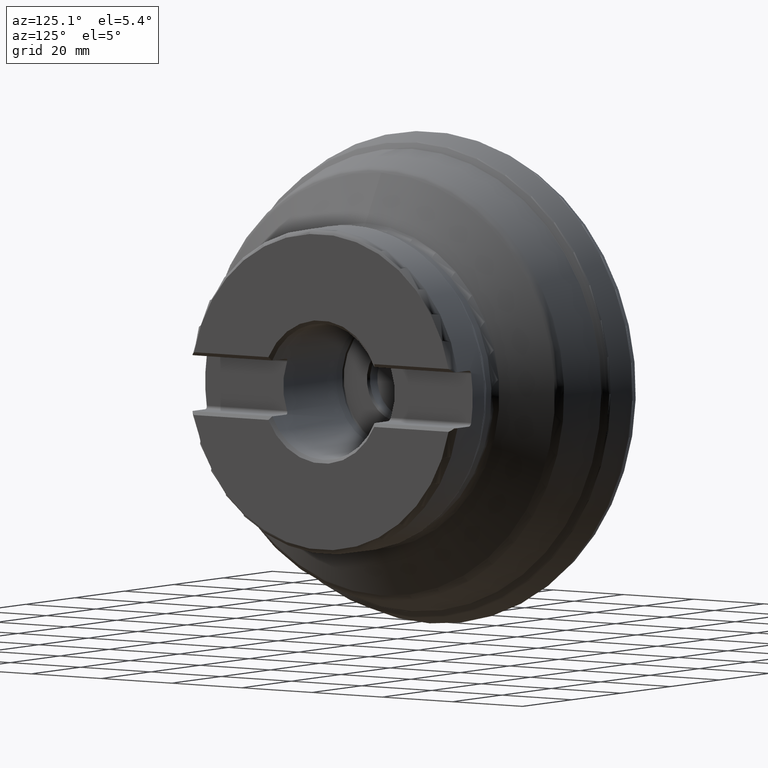
[diagram: clean part render]
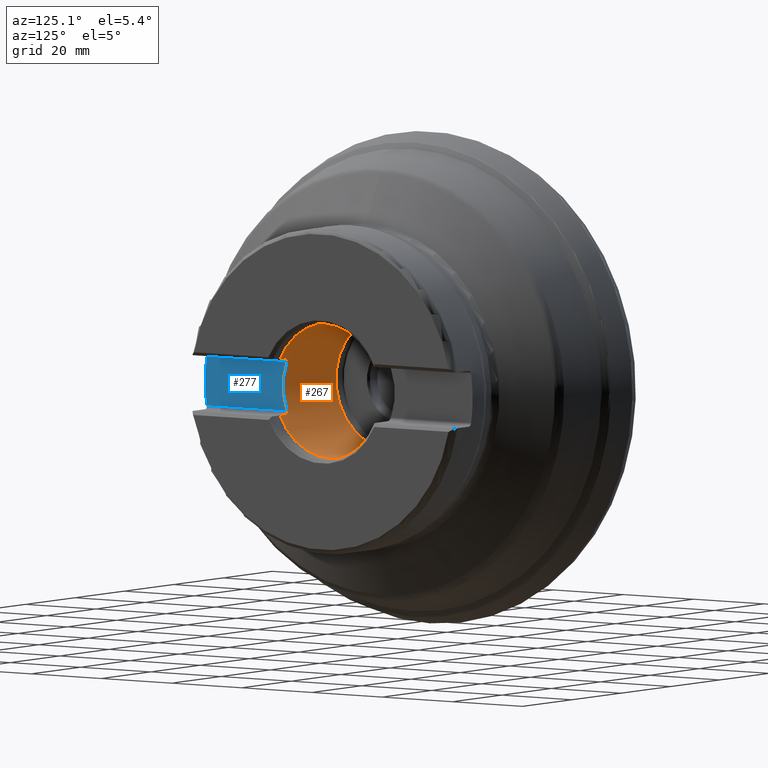
[diagram: same view with the hole feature highlighted: cylindrical wall and planar end face, labeled with their STEP entity ids]
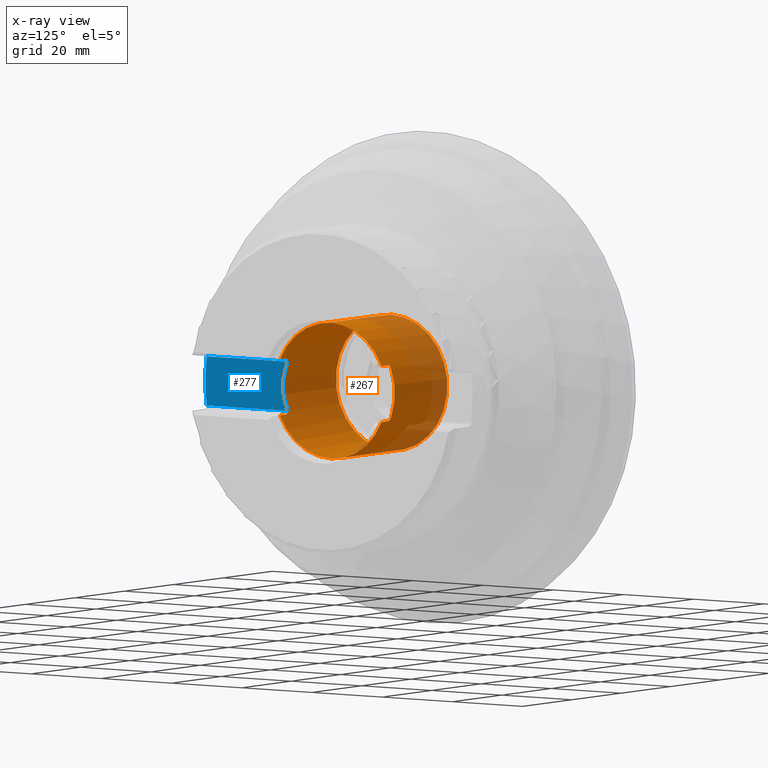
[diagram: x-ray of the same camera — body ghosted, the hole faces saturated]
A machine part, auxiliary view. The highlighted faces form one hole feature of diameter 31.75 mm: the cylindrical wall (entity #267, orange) and its adjacent planar end face (entity #277, blue) — they share a circular edge in the B-rep.
The next image is the same camera in x-ray (body ghosted, the hole faces saturated) — the bore reads through the body.
Wall:
#105=CYLINDRICAL_SURFACE('',#1148,15.875);
#185=LINE('',#1796,#209);
#186=LINE('',#1834,#210);
#187=LINE('',#1835,#211);
#188=LINE('',#1873,#212);
#209=VECTOR('',#1354,1.);
#210=VECTOR('',#1357,1.);
#211=VECTOR('',#1358,1.);
#212=VECTOR('',#1361,1.);
#267=ADVANCED_FACE('',(#451,#452),#105,.F.);
#371=B_SPLINE_CURVE_WITH_KNOTS('',3,(#1798,#1799,#1800,#1801,#1802,#1803,
#1804,#1805,#1806,#1807,#1808,#1809,#1810,#1811,#1812,#1813),
 .UNSPECIFIED.,.F.,.F.,(4,3,3,3,3,4),(0.,0.196363871575081,0.413659802878611,
0.614000905600015,0.806746950187233,1.),.UNSPECIFIED.);
#372=B_SPLINE_CURVE_WITH_KNOTS('',3,(#1817,#1818,#1819,#1820,#1821,#1822,
#1823,#1824,#1825,#1826,#1827,#1828,#1829,#1830,#1831,#1832),
 .UNSPECIFIED.,.F.,.F.,(4,3,3,3,3,4),(0.,0.0834205287927223,0.295513851157138,
0.52608084054011,0.763210875925665,1.),.UNSPECIFIED.);
#373=B_SPLINE_CURVE_WITH_KNOTS('',3,(#1837,#1838,#1839,#1840,#1841,#1842,
#1843,#1844,#1845,#1846,#1847,#1848,#1849,#1850,#1851,#1852),
 .UNSPECIFIED.,.F.,.F.,(4,3,3,3,3,4),(0.,0.196491915280469,0.413786129382111,
0.614092739710108,0.806792433571838,1.),.UNSPECIFIED.);
#374=B_SPLINE_CURVE_WITH_KNOTS('',3,(#1856,#1857,#1858,#1859,#1860,#1861,
#1862,#1863,#1864,#1865,#1866,#1867,#1868,#1869,#1870,#1871),
 .UNSPECIFIED.,.F.,.F.,(4,3,3,3,3,4),(0.,0.0835474075782083,0.295655758576182,
0.526190034038671,0.76326488615965,1.),.UNSPECIFIED.);
#451=FACE_BOUND('',#551,.T.);
#452=FACE_BOUND('',#552,.T.);
#551=EDGE_LOOP('',(#695));
#552=EDGE_LOOP('',(#696,#697,#698,#699,#700,#701,#702,#703,#704,#705,#706,
#707));
#695=ORIENTED_EDGE('',*,*,#968,.T.);
#696=ORIENTED_EDGE('',*,*,#971,.T.);
#697=ORIENTED_EDGE('',*,*,#975,.T.);
#698=ORIENTED_EDGE('',*,*,#976,.F.);
#699=ORIENTED_EDGE('',*,*,#977,.T.);
#700=ORIENTED_EDGE('',*,*,#978,.F.);
#701=ORIENTED_EDGE('',*,*,#979,.T.);
#702=ORIENTED_EDGE('',*,*,#974,.T.);
#703=ORIENTED_EDGE('',*,*,#980,.T.);
#704=ORIENTED_EDGE('',*,*,#981,.F.);
#705=ORIENTED_EDGE('',*,*,#982,.T.);
#706=ORIENTED_EDGE('',*,*,#983,.F.);
#707=ORIENTED_EDGE('',*,*,#984,.T.);
#874=VERTEX_POINT('',#1754);
#875=VERTEX_POINT('',#1767);
#876=VERTEX_POINT('',#1775);
#877=VERTEX_POINT('',#1785);
#878=VERTEX_POINT('',#1793);
#879=VERTEX_POINT('',#1797);
#880=VERTEX_POINT('',#1814);
#881=VERTEX_POINT('',#1816);
#882=VERTEX_POINT('',#1833);
#883=VERTEX_POINT('',#1836);
#884=VERTEX_POINT('',#1853);
#885=VERTEX_POINT('',#1855);
#886=VERTEX_POINT('',#1872);
#968=EDGE_CURVE('',#874,#874,#1060,.T.);
#971=EDGE_CURVE('',#875,#876,#1061,.T.);
#974=EDGE_CURVE('',#877,#878,#1062,.T.);
#975=EDGE_CURVE('',#876,#879,#185,.T.);
#976=EDGE_CURVE('',#880,#879,#371,.T.);
#977=EDGE_CURVE('',#880,#881,#1063,.T.);
#978=EDGE_CURVE('',#882,#881,#372,.T.);
#979=EDGE_CURVE('',#882,#877,#186,.T.);
#980=EDGE_CURVE('',#878,#883,#187,.T.);
#981=EDGE_CURVE('',#884,#883,#373,.T.);
#982=EDGE_CURVE('',#884,#885,#1064,.T.);
#983=EDGE_CURVE('',#886,#885,#374,.T.);
#984=EDGE_CURVE('',#886,#875,#188,.T.);
#1060=CIRCLE('',#1136,15.875);
#1061=CIRCLE('',#1142,15.875);
#1062=CIRCLE('',#1144,15.875);
#1063=CIRCLE('',#1146,15.875);
#1064=CIRCLE('',#1147,15.875);
#1136=AXIS2_PLACEMENT_3D('',#1753,#1334,#1335);
#1142=AXIS2_PLACEMENT_3D('',#1776,#1346,#1347);
#1144=AXIS2_PLACEMENT_3D('',#1794,#1350,#1351);
#1146=AXIS2_PLACEMENT_3D('',#1815,#1355,#1356);
#1147=AXIS2_PLACEMENT_3D('',#1854,#1359,#1360);
#1148=AXIS2_PLACEMENT_3D('',#1874,#1362,#1363);
#1334=DIRECTION('',(-1.,0.,0.));
#1335=DIRECTION('',(0.,0.,1.));
#1346=DIRECTION('',(1.,0.,0.));
#1347=DIRECTION('',(0.,0.,1.));
#1350=DIRECTION('',(1.,0.,0.));
#1351=DIRECTION('',(0.,0.,1.));
#1354=DIRECTION('',(-1.,0.,0.));
#1355=DIRECTION('',(1.,0.,5.2968655755017E-16));
#1356=DIRECTION('',(4.37095678986282E-16,0.,-1.));
#1357=DIRECTION('',(1.,0.,0.));
#1358=DIRECTION('',(-1.,0.,0.));
#1359=DIRECTION('',(1.,0.,5.2968655755017E-16));
#1360=DIRECTION('',(4.37095678986282E-16,0.,-1.));
#1361=DIRECTION('',(1.,0.,0.));
#1362=DIRECTION('',(-1.,0.,0.));
#1363=DIRECTION('',(0.,0.,1.));
#1753=CARTESIAN_POINT('',(22.3,0.,0.));
#1754=CARTESIAN_POINT('',(22.3,0.,15.875));
#1767=CARTESIAN_POINT('',(47.,-14.4621932900926,-6.54680000000002));
#1775=CARTESIAN_POINT('',(47.,14.4621932900926,-6.54680000000002));
#1776=CARTESIAN_POINT('',(47.,0.,0.));
#1785=CARTESIAN_POINT('',(47.,14.4592944074045,6.55319999999998));
#1793=CARTESIAN_POINT('',(47.,-14.4592944074045,6.55319999999998));
#1794=CARTESIAN_POINT('',(47.,0.,0.));
#1796=CARTESIAN_POINT('',(1.59060051155813E-15,14.4621932900926,-6.54680000000003));
#1797=CARTESIAN_POINT('',(44.46,14.4621932900926,-6.54680000000002));
#1798=CARTESIAN_POINT('',(43.66,14.7983078343438,-5.74680000000002));
#1799=CARTESIAN_POINT('',(43.66,14.7673535571785,-5.82650886794066));
#1800=CARTESIAN_POINT('',(43.6721052538313,14.7354359470671,-5.90671745145774));
#1801=CARTESIAN_POINT('',(43.6956226820726,14.7044529100584,-5.98286633779126));
#1802=CARTESIAN_POINT('',(43.7215815345158,14.6702534186133,-6.06692049897588));
#1803=CARTESIAN_POINT('',(43.7621173473612,14.6364047491195,-6.14795918838647));
#1804=CARTESIAN_POINT('',(43.8149132481033,14.6057505819211,-6.21994171505733));
#1805=CARTESIAN_POINT('',(43.8636333423255,14.5774628949377,-6.28636724113905));
#1806=CARTESIAN_POINT('',(43.9239598381318,14.5512551108376,-6.34661339089095));
#1807=CARTESIAN_POINT('',(43.9924022023248,14.5295518322069,-6.39591655317771));
#1808=CARTESIAN_POINT('',(44.0582238487612,14.5086795910243,-6.44333185442424));
#1809=CARTESIAN_POINT('',(44.133196397027,14.4915129403001,-6.48170288215921));
#1810=CARTESIAN_POINT('',(44.2120747775149,14.4799583194974,-6.50741362336981));
#1811=CARTESIAN_POINT('',(44.2910696432693,14.4683866351713,-6.53316233344494));
#1812=CARTESIAN_POINT('',(44.3761126424052,14.4621932900926,-6.54680000000002));
#1813=CARTESIAN_POINT('',(44.46,14.4621932900926,-6.54680000000002));
#1814=CARTESIAN_POINT('',(43.66,14.7983078343438,-5.74680000000002));
#1815=CARTESIAN_POINT('',(43.66,0.,0.));
#1816=CARTESIAN_POINT('',(43.66,14.7958208545521,5.75319999999998));
#1817=CARTESIAN_POINT('',(44.46,14.4592944074045,6.55319999999998));
#1818=CARTESIAN_POINT('',(44.4232776644554,14.4592944074045,6.55319999999998));
#1819=CARTESIAN_POINT('',(44.3864519817636,14.4604487570685,6.55065472010163));
#1820=CARTESIAN_POINT('',(44.3501475449344,14.4627265474316,6.54562188139654));
#1821=CARTESIAN_POINT('',(44.2591815832235,14.4684338771425,6.53301138381192));
#1822=CARTESIAN_POINT('',(44.1695301115783,14.4815498120946,6.50403152282879));
#1823=CARTESIAN_POINT('',(44.0896527410341,14.5001420873346,6.46231417118571));
#1824=CARTESIAN_POINT('',(44.0028931896143,14.5203362605868,6.41700248039874));
#1825=CARTESIAN_POINT('',(43.9246718941806,14.547589211306,6.35525584243646));
#1826=CARTESIAN_POINT('',(43.8615490774679,14.5782609479005,6.28410158534373));
#1827=CARTESIAN_POINT('',(43.7965709432253,14.6098341938627,6.21085594913655));
#1828=CARTESIAN_POINT('',(43.7453670888369,14.6459806267224,6.12538260143256));
#1829=CARTESIAN_POINT('',(43.7114787611433,14.6829111626917,6.03554014057587));
#1830=CARTESIAN_POINT('',(43.6776155137872,14.7198143668225,5.94576417102715));
#1831=CARTESIAN_POINT('',(43.66,14.7585646925544,5.84901372082443));
#1832=CARTESIAN_POINT('',(43.66,14.7958208545521,5.75319999999998));
#1833=CARTESIAN_POINT('',(44.46,14.4592944074045,6.55319999999998));
#1834=CARTESIAN_POINT('',(0.,14.4592944074045,6.55319999999998));
#1835=CARTESIAN_POINT('',(0.,-14.4592944074045,6.55319999999998));
#1836=CARTESIAN_POINT('',(44.46,-14.4592944074045,6.55319999999998));
#1837=CARTESIAN_POINT('',(43.66,-14.7958208545521,5.75319999999998));
#1838=CARTESIAN_POINT('',(43.66,-14.7648092186308,5.83295432967712));
#1839=CARTESIAN_POINT('',(43.6721191275086,-14.7328325655386,5.91320875203833));
#1840=CARTESIAN_POINT('',(43.6956632411296,-14.7017938043185,5.98939762708248));
#1841=CARTESIAN_POINT('',(43.721634735989,-14.6675549690644,6.07344152053347));
#1842=CARTESIAN_POINT('',(43.7621807802757,-14.6336686564131,6.15446897928617));
#1843=CARTESIAN_POINT('',(43.8149863645331,-14.602980951104,6.22644138667462));
#1844=CARTESIAN_POINT('',(43.8637074445125,-14.5746669353464,6.29284673879781));
#1845=CARTESIAN_POINT('',(43.9240307136712,-14.548435080348,6.35307508655959));
#1846=CARTESIAN_POINT('',(43.99246868082,-14.5267117622173,6.40236443647641));
#1847=CARTESIAN_POINT('',(44.0582815387159,-14.5058216962388,6.44976317020571));
#1848=CARTESIAN_POINT('',(44.1332426509796,-14.4886401394538,6.48812193925274));
#1849=CARTESIAN_POINT('',(44.2121094873329,-14.4770753157938,6.51382493630541));
#1850=CARTESIAN_POINT('',(44.2910930203301,-14.4654933800475,6.53956596523096));
#1851=CARTESIAN_POINT('',(44.3761242568409,-14.4592944074045,6.55319999999998));
#1852=CARTESIAN_POINT('',(44.46,-14.4592944074045,6.55319999999998));
#1853=CARTESIAN_POINT('',(43.66,-14.7958208545521,5.75319999999998));
#1854=CARTESIAN_POINT('',(43.66,0.,0.));
#1855=CARTESIAN_POINT('',(43.66,-14.7983078343438,-5.74680000000002));
#1856=CARTESIAN_POINT('',(44.46,-14.4621932900926,-6.54680000000002));
#1857=CARTESIAN_POINT('',(44.4232258798805,-14.4621932900926,-6.54680000000002));
#1858=CARTESIAN_POINT('',(44.3863480181064,-14.4633495542465,-6.54424750060517));
#1859=CARTESIAN_POINT('',(44.349993397879,-14.4656310564497,-6.53920049690155));
#1860=CARTESIAN_POINT('',(44.2590322963252,-14.4713394905444,-6.52657263795113));
#1861=CARTESIAN_POINT('',(44.1693885840043,-14.484447066737,-6.49757684838091));
#1862=CARTESIAN_POINT('',(44.0895184311592,-14.5030239304552,-6.45584400931769));
#1863=CARTESIAN_POINT('',(44.0027848814019,-14.5231971400491,-6.41052498657306));
#1864=CARTESIAN_POINT('',(43.9245865155006,-14.5504173373661,-6.34877795255717));
#1865=CARTESIAN_POINT('',(43.8614810604084,-14.5810510787734,-6.27762490422936));
#1866=CARTESIAN_POINT('',(43.7965268244592,-14.6125822873586,-6.20438730721286));
#1867=CARTESIAN_POINT('',(43.7453400654327,-14.648678875734,-6.11892650145922));
#1868=CARTESIAN_POINT('',(43.7114626265704,-14.6855578715895,-6.02909736197679));
#1869=CARTESIAN_POINT('',(43.6776101767311,-14.7224096643828,-5.9393344831832));
#1870=CARTESIAN_POINT('',(43.66,-14.761105220653,-5.84259865832095));
#1871=CARTESIAN_POINT('',(43.66,-14.7983078343438,-5.74680000000002));
#1872=CARTESIAN_POINT('',(44.46,-14.4621932900926,-6.54680000000002));
#1873=CARTESIAN_POINT('',(1.59060051155813E-15,-14.4621932900926,-6.54680000000003));
#1874=CARTESIAN_POINT('',(0.,0.,0.));
End face:
#146=PLANE('',#1160);
#170=FACE_OUTER_BOUND('',#562,.T.);
#199=LINE('',#1972,#223);
#200=LINE('',#1991,#224);
#223=VECTOR('',#1390,1.);
#224=VECTOR('',#1393,1.);
#277=ADVANCED_FACE('',(#170),#146,.T.);
#562=EDGE_LOOP('',(#756,#757,#758,#759));
#756=ORIENTED_EDGE('',*,*,#1006,.T.);
#757=ORIENTED_EDGE('',*,*,#1004,.T.);
#758=ORIENTED_EDGE('',*,*,#982,.F.);
#759=ORIENTED_EDGE('',*,*,#1002,.T.);
#884=VERTEX_POINT('',#1853);
#885=VERTEX_POINT('',#1855);
#897=VERTEX_POINT('',#1973);
#898=VERTEX_POINT('',#1992);
#982=EDGE_CURVE('',#884,#885,#1064,.T.);
#1002=EDGE_CURVE('',#884,#897,#199,.T.);
#1004=EDGE_CURVE('',#898,#885,#200,.T.);
#1006=EDGE_CURVE('',#897,#898,#1066,.T.);
#1064=CIRCLE('',#1147,15.875);
#1066=CIRCLE('',#1159,38.1);
#1147=AXIS2_PLACEMENT_3D('',#1854,#1359,#1360);
#1159=AXIS2_PLACEMENT_3D('',#2010,#1396,#1397);
#1160=AXIS2_PLACEMENT_3D('',#2011,#1398,#1399);
#1359=DIRECTION('',(1.,0.,5.2968655755017E-16));
#1360=DIRECTION('',(4.37095678986282E-16,0.,-1.));
#1390=DIRECTION('',(0.,-1.,0.));
#1393=DIRECTION('',(0.,1.,0.));
#1396=DIRECTION('',(1.,0.,5.2968655755017E-16));
#1397=DIRECTION('',(5.46369598732853E-16,0.,-1.));
#1398=DIRECTION('',(1.,0.,5.2968655755017E-16));
#1399=DIRECTION('',(5.27355936696949E-16,0.,-1.));
#1853=CARTESIAN_POINT('',(43.66,-14.7958208545521,5.75319999999998));
#1854=CARTESIAN_POINT('',(43.66,0.,0.));
#1855=CARTESIAN_POINT('',(43.66,-14.7983078343438,-5.74680000000002));
#1972=CARTESIAN_POINT('',(43.66,-50.,5.75319999999998));
#1973=CARTESIAN_POINT('',(43.66,-37.6631210836277,5.75319999999998));
#1991=CARTESIAN_POINT('',(43.66,-50.,-5.74680000000002));
#1992=CARTESIAN_POINT('',(43.66,-37.6640981540777,-5.74680000000002));
#2010=CARTESIAN_POINT('',(43.66,0.,0.));
#2011=CARTESIAN_POINT('',(43.66,-50.,6.55319999999998));